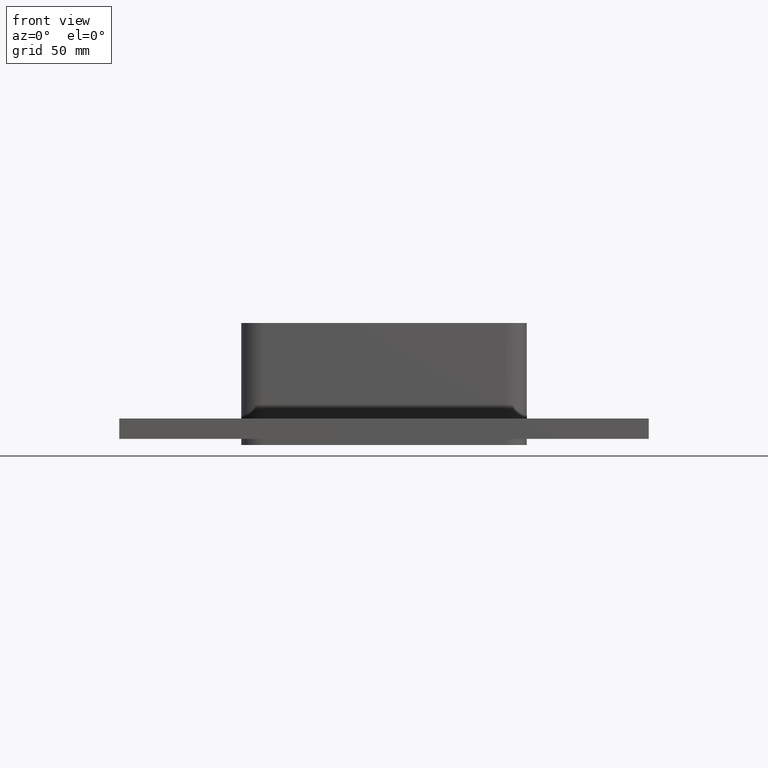
[diagram: clean part render]
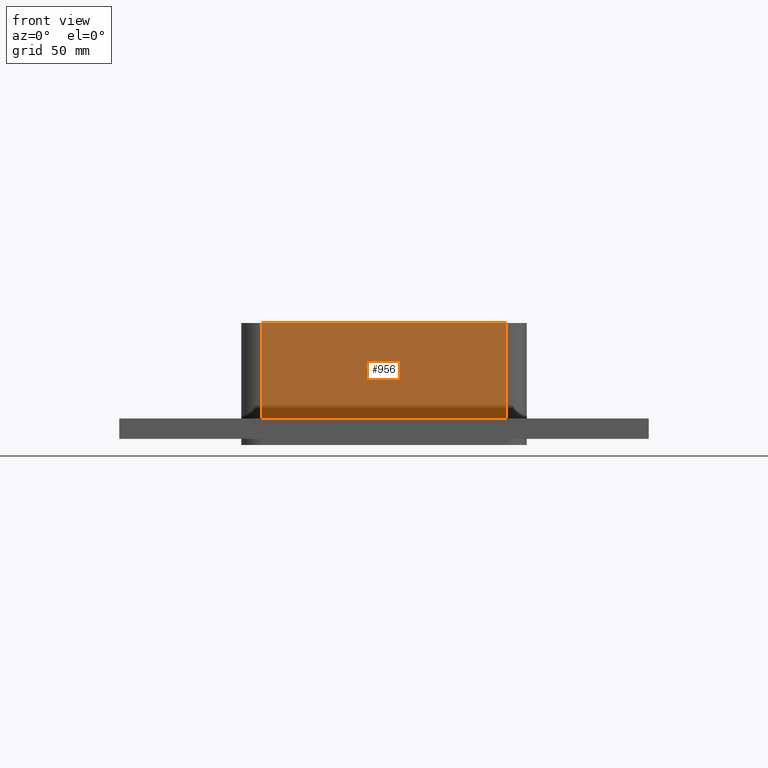
[diagram: same view with one face highlighted and labeled with its STEP entity id]
A machine part, front view. The second image highlights one B-rep face of the part: STEP entity #956.
In plain terms, the highlighted planar face has unit normal (0, -1, 0).
Its self-contained STEP definition (entity closure, byte-faithful):
#470=CARTESIAN_POINT('',(60.250000000000021,-60.499999999999972,-17.0));
#471=VERTEX_POINT('',#470);
#479=CARTESIAN_POINT('',(-60.249999999999986,-60.500000000000043,-17.0));
#480=VERTEX_POINT('',#479);
#481=CARTESIAN_POINT('',(-60.249999999999986,-60.499999999999972,-17.0));
#482=DIRECTION('',(1.0,0.0,0.0));
#483=VECTOR('',#482,120.5);
#484=LINE('',#481,#483);
#485=EDGE_CURVE('',#480,#471,#484,.T.);
#674=CARTESIAN_POINT('',(60.249999999999993,-60.499999999999972,30.0));
#675=VERTEX_POINT('',#674);
#683=CARTESIAN_POINT('',(60.249999999999993,-60.499999999999972,30.0));
#684=DIRECTION('',(0.0,0.0,-1.0));
#685=VECTOR('',#684,47.0);
#686=LINE('',#683,#685);
#687=EDGE_CURVE('',#675,#471,#686,.T.);
#933=CARTESIAN_POINT('',(-70.25,-60.499999999999972,0.0));
#934=DIRECTION('',(0.0,-1.0,0.0));
#935=DIRECTION('',(1.0,0.0,0.0));
#936=AXIS2_PLACEMENT_3D('',#933,#934,#935);
#937=PLANE('',#936);
#938=ORIENTED_EDGE('',*,*,#485,.T.);
#939=ORIENTED_EDGE('',*,*,#687,.F.);
#940=CARTESIAN_POINT('',(-60.249999999999993,-60.499999999999972,30.0));
#941=VERTEX_POINT('',#940);
#942=CARTESIAN_POINT('',(-60.25,-60.499999999999972,30.0));
#943=DIRECTION('',(1.0,0.0,0.0));
#944=VECTOR('',#943,120.5);
#945=LINE('',#942,#944);
#946=EDGE_CURVE('',#941,#675,#945,.T.);
#947=ORIENTED_EDGE('',*,*,#946,.F.);
#948=CARTESIAN_POINT('',(-60.249999999999993,-60.499999999999972,-17.0));
#949=DIRECTION('',(0.0,0.0,1.0));
#950=VECTOR('',#949,47.0);
#951=LINE('',#948,#950);
#952=EDGE_CURVE('',#480,#941,#951,.T.);
#953=ORIENTED_EDGE('',*,*,#952,.F.);
#954=EDGE_LOOP('',(#938,#939,#947,#953));
#955=FACE_OUTER_BOUND('',#954,.T.);
#956=ADVANCED_FACE('',(#955),#937,.T.);